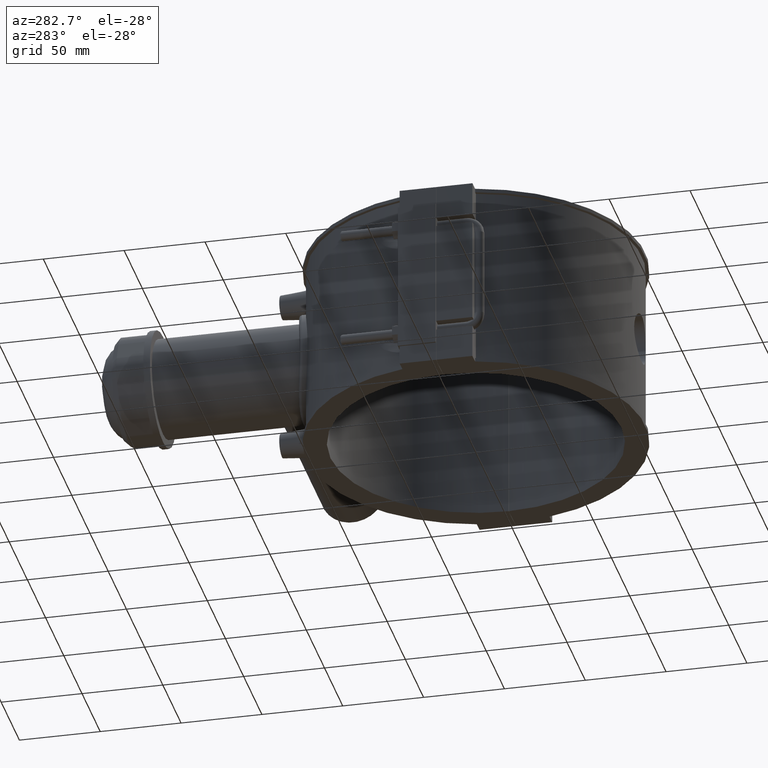
[diagram: clean part render]
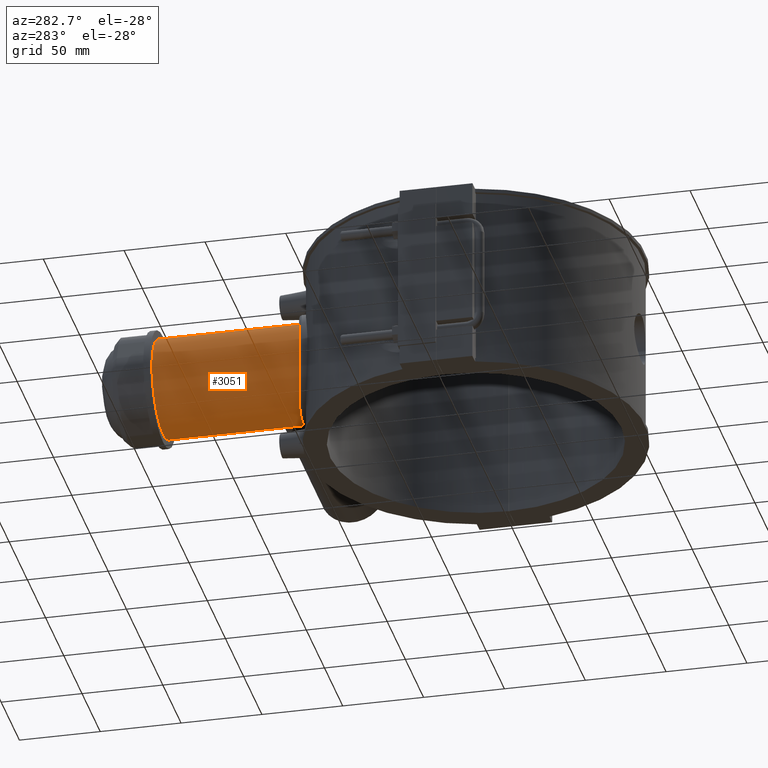
[diagram: same view with one face highlighted and labeled with its STEP entity id]
A machine part, auxiliary view. The second image highlights one B-rep face of the part: STEP entity #3051.
In plain terms, the highlighted cylindrical surface (bore or boss wall) has radius 30.6 mm, axis along (0, 1, 0).
Its self-contained STEP definition (entity closure, byte-faithful):
#738=CIRCLE('',#3264,30.6);
#819=FACE_BOUND('',#1093,.T.);
#904=FACE_OUTER_BOUND('',#1092,.T.);
#1092=EDGE_LOOP('',(#2250,#2251,#2252));
#1093=EDGE_LOOP('',(#2253));
#1285=B_SPLINE_CURVE_WITH_KNOTS('',3,(#4516,#4517,#4518,#4519,#4520,#4521),
 .UNSPECIFIED.,.F.,.F.,(4,2,4),(0.,0.393500533103456,0.713799349997413),
 .UNSPECIFIED.);
#1286=B_SPLINE_CURVE_WITH_KNOTS('',3,(#4522,#4523,#4524,#4525,#4526,#4527,
#4528,#4529,#4530,#4531,#4532,#4533,#4534,#4535,#4536,#4537,#4538,#4539,
#4540,#4541,#4542,#4543,#4544,#4545,#4546,#4547,#4548,#4549,#4550,#4551,
#4552,#4553,#4554,#4555,#4556,#4557,#4558,#4559),.UNSPECIFIED.,.F.,.F.,
(4,2,2,2,2,2,2,2,2,2,2,2,2,2,2,2,2,2,4),(5.55096622759623,5.87126504449018,
6.26476557759364,6.6582661106971,7.05176664380055,7.44526717690401,7.83876771000746,
8.22836287410321,8.61795803819896,9.00755320229471,9.39714836639046,9.78674353048621,
10.176338694582,10.5659338586777,10.9555290227735,11.3490295558769,11.7425300889804,
12.1360306220838,12.5295311551873),.UNSPECIFIED.);
#1287=B_SPLINE_CURVE_WITH_KNOTS('',3,(#4766,#4767,#4768,#4769,#4770,#4771,
#4772,#4773,#4774,#4775,#4776,#4777,#4778,#4779,#4780,#4781,#4782,#4783,
#4784,#4785,#4786,#4787,#4788,#4789,#4790,#4791,#4792,#4793,#4794,#4795,
#4796,#4797,#4798,#4799,#4800,#4801,#4802,#4803,#4804,#4805,#4806,#4807,
#4808,#4809,#4810,#4811,#4812,#4813,#4814,#4815,#4816,#4817,#4818,#4819),
 .UNSPECIFIED.,.F.,.F.,(4,2,2,2,2,2,2,2,2,2,2,2,2,2,2,2,2,2,2,2,2,2,2,2,
2,2,4),(1.93247226610302,2.31972321158568,2.8995108683,3.47929852501433,
4.05908618172865,4.63887383844297,5.21866149515729,5.79844915187161,6.37823680858594,
6.95802446530026,7.53795526819668,8.1178860710931,8.69781687398952,9.27774767688594,
9.85767847978236,10.4376092826788,11.0175400855752,11.5974708884716,12.1772585451859,
12.7570462019003,13.3368338586146,13.9166215153289,14.4964091720432,15.0761968287576,
15.6559844854719,16.2357721421862,16.6230230876689),.UNSPECIFIED.);
#1335=VERTEX_POINT('',#4444);
#1341=VERTEX_POINT('',#4510);
#1342=VERTEX_POINT('',#4515);
#1396=VERTEX_POINT('',#4820);
#1636=EDGE_CURVE('',#1342,#1341,#1285,.T.);
#1637=EDGE_CURVE('',#1335,#1342,#1286,.T.);
#1724=EDGE_CURVE('',#1335,#1341,#1287,.T.);
#1725=EDGE_CURVE('',#1396,#1396,#738,.T.);
#2250=ORIENTED_EDGE('',*,*,#1724,.F.);
#2251=ORIENTED_EDGE('',*,*,#1637,.T.);
#2252=ORIENTED_EDGE('',*,*,#1636,.T.);
#2253=ORIENTED_EDGE('',*,*,#1725,.F.);
#2974=CYLINDRICAL_SURFACE('',#3263,30.6);
#3051=ADVANCED_FACE('',(#904,#819),#2974,.T.);
#3263=AXIS2_PLACEMENT_3D('',#4765,#3670,#3671);
#3264=AXIS2_PLACEMENT_3D('',#4821,#3672,#3673);
#3670=DIRECTION('center_axis',(0.,1.,3.06161699786838E-16));
#3671=DIRECTION('ref_axis',(0.,0.,1.));
#3672=DIRECTION('center_axis',(0.,1.,3.06161699786838E-16));
#3673=DIRECTION('ref_axis',(1.,0.,0.));
#4444=CARTESIAN_POINT('',(24.2176461043326,103.919436262809,18.7046950567108));
#4510=CARTESIAN_POINT('',(24.2176461043326,103.919436262809,-18.7046950567108));
#4515=CARTESIAN_POINT('',(23.1594473163761,111.,-20.));
#4516=CARTESIAN_POINT('Ctrl Pts',(23.1594473163761,111.,-20.));
#4517=CARTESIAN_POINT('Ctrl Pts',(23.1594473163761,109.688331556322,-20.));
#4518=CARTESIAN_POINT('Ctrl Pts',(23.2743259550548,108.354480801617,-19.8691713621282));
#4519=CARTESIAN_POINT('Ctrl Pts',(23.6739239747007,105.980287719745,-19.3902978118822));
#4520=CARTESIAN_POINT('Ctrl Pts',(23.9218594248282,104.931115190283,-19.0876607829779));
#4521=CARTESIAN_POINT('Ctrl Pts',(24.2176461043484,103.919436262877,-18.7046950567108));
#4522=CARTESIAN_POINT('Ctrl Pts',(24.2176461043484,103.919436262877,18.7046950567108));
#4523=CARTESIAN_POINT('Ctrl Pts',(23.9218594248282,104.931115190283,19.0876607829779));
#4524=CARTESIAN_POINT('Ctrl Pts',(23.6739239747007,105.980287719745,19.3902978118822));
#4525=CARTESIAN_POINT('Ctrl Pts',(23.2743259550548,108.354480801616,19.8691713621282));
#4526=CARTESIAN_POINT('Ctrl Pts',(23.1594473163761,109.688331556322,20.));
#4527=CARTESIAN_POINT('Ctrl Pts',(23.1594473163761,112.311668443678,20.));
#4528=CARTESIAN_POINT('Ctrl Pts',(23.2743259550548,113.645519198383,19.8691713621282));
#4529=CARTESIAN_POINT('Ctrl Pts',(23.7149036433318,116.263191078892,19.341188260682));
#4530=CARTESIAN_POINT('Ctrl Pts',(24.0392889571048,117.547295747394,18.9443442137066));
#4531=CARTESIAN_POINT('Ctrl Pts',(24.8157759065117,119.989028233019,17.9151543881181));
#4532=CARTESIAN_POINT('Ctrl Pts',(25.2673468184926,121.149250789195,17.2819440746868));
#4533=CARTESIAN_POINT('Ctrl Pts',(26.200984047049,123.290648544021,15.8307561763519));
#4534=CARTESIAN_POINT('Ctrl Pts',(26.6824016365569,124.271858555426,15.0124126920357));
#4535=CARTESIAN_POINT('Ctrl Pts',(27.5850050176066,126.003775465896,13.2804957815664));
#4536=CARTESIAN_POINT('Ctrl Pts',(28.0410430223188,126.820558023233,12.3038928737231));
#4537=CARTESIAN_POINT('Ctrl Pts',(28.8864156904468,128.274691718892,10.1617351946478));
#4538=CARTESIAN_POINT('Ctrl Pts',(29.2752579303965,128.912134657191,8.99604844208787));
#4539=CARTESIAN_POINT('Ctrl Pts',(29.919471976457,129.946731965989,6.54177480490095));
#4540=CARTESIAN_POINT('Ctrl Pts',(30.1751270315782,130.344732971532,5.25059734327164));
#4541=CARTESIAN_POINT('Ctrl Pts',(30.5154888274388,130.871473542444,2.62906931549225));
#4542=CARTESIAN_POINT('Ctrl Pts',(30.6,131.,1.29865054698583));
#4543=CARTESIAN_POINT('Ctrl Pts',(30.6,131.,-1.29865054698582));
#4544=CARTESIAN_POINT('Ctrl Pts',(30.5154888274388,130.871473542444,-2.62906931549224));
#4545=CARTESIAN_POINT('Ctrl Pts',(30.1751270315782,130.344732971532,-5.25059734327163));
#4546=CARTESIAN_POINT('Ctrl Pts',(29.919471976457,129.946731965989,-6.54177480490094));
#4547=CARTESIAN_POINT('Ctrl Pts',(29.2752579303965,128.912134657191,-8.99604844208786));
#4548=CARTESIAN_POINT('Ctrl Pts',(28.8864156904468,128.274691718892,-10.1617351946478));
#4549=CARTESIAN_POINT('Ctrl Pts',(28.0410430223188,126.820558023233,-12.3038928737231));
#4550=CARTESIAN_POINT('Ctrl Pts',(27.5850050176066,126.003775465896,-13.2804957815664));
#4551=CARTESIAN_POINT('Ctrl Pts',(26.6824016365568,124.271858555426,-15.0124126920356));
#4552=CARTESIAN_POINT('Ctrl Pts',(26.200984047049,123.290648544021,-15.8307561763519));
#4553=CARTESIAN_POINT('Ctrl Pts',(25.2673468184926,121.149250789195,-17.2819440746868));
#4554=CARTESIAN_POINT('Ctrl Pts',(24.8157759065117,119.989028233019,-17.9151543881181));
#4555=CARTESIAN_POINT('Ctrl Pts',(24.0392889571048,117.547295747394,-18.9443442137066));
#4556=CARTESIAN_POINT('Ctrl Pts',(23.7149036433318,116.263191078892,-19.341188260682));
#4557=CARTESIAN_POINT('Ctrl Pts',(23.2743259550548,113.645519198384,-19.8691713621283));
#4558=CARTESIAN_POINT('Ctrl Pts',(23.1594473163761,112.311668443678,-20.));
#4559=CARTESIAN_POINT('Ctrl Pts',(23.1594473163761,111.,-20.));
#4765=CARTESIAN_POINT('Origin',(0.,142.2,1.5981640728873E-14));
#4766=CARTESIAN_POINT('Ctrl Pts',(24.2176461043362,103.919436262737,18.7046950567265));
#4767=CARTESIAN_POINT('Ctrl Pts',(23.4077841241217,104.108168530112,19.7532526926949));
#4768=CARTESIAN_POINT('Ctrl Pts',(22.5405958310645,104.300123555233,20.7343391775522));
#4769=CARTESIAN_POINT('Ctrl Pts',(20.2853141722367,104.767153095376,22.98962083638));
#4770=CARTESIAN_POINT('Ctrl Pts',(18.7572095971888,105.055973531958,24.2602289160296));
#4771=CARTESIAN_POINT('Ctrl Pts',(15.4262471790319,105.596502709904,26.5032548378288));
#4772=CARTESIAN_POINT('Ctrl Pts',(13.6234156684582,105.847703593396,27.475834137547));
#4773=CARTESIAN_POINT('Ctrl Pts',(9.85686130471451,106.264651202978,29.0406819729061));
#4774=CARTESIAN_POINT('Ctrl Pts',(7.88993884661287,106.430395565395,29.6341934079132));
#4775=CARTESIAN_POINT('Ctrl Pts',(3.92784477748027,106.650139571473,30.41395385921));
#4776=CARTESIAN_POINT('Ctrl Pts',(1.93262552238107,106.704,30.6));
#4777=CARTESIAN_POINT('Ctrl Pts',(-1.93262552238107,106.704,30.6));
#4778=CARTESIAN_POINT('Ctrl Pts',(-3.92784477748027,106.650139571473,30.41395385921));
#4779=CARTESIAN_POINT('Ctrl Pts',(-7.88993884661287,106.430395565395,29.6341934079132));
#4780=CARTESIAN_POINT('Ctrl Pts',(-9.85686130471451,106.264651202978,29.0406819729061));
#4781=CARTESIAN_POINT('Ctrl Pts',(-13.6234156684582,105.847703593396,27.475834137547));
#4782=CARTESIAN_POINT('Ctrl Pts',(-15.4262471790319,105.596502709904,26.5032548378288));
#4783=CARTESIAN_POINT('Ctrl Pts',(-18.7572095971888,105.055973531958,24.2602289160296));
#4784=CARTESIAN_POINT('Ctrl Pts',(-20.2853141722367,104.767153095376,22.98962083638));
#4785=CARTESIAN_POINT('Ctrl Pts',(-22.9899546751309,104.207069167333,20.2849803334858));
#4786=CARTESIAN_POINT('Ctrl Pts',(-24.2606015899069,103.915830756304,18.7567190480679));
#4787=CARTESIAN_POINT('Ctrl Pts',(-26.5034801784178,103.366542990763,15.4258496415267));
#4788=CARTESIAN_POINT('Ctrl Pts',(-27.4758884435353,103.109055599237,13.6232677839844));
#4789=CARTESIAN_POINT('Ctrl Pts',(-29.0405456802427,102.679348199261,9.85720652836413));
#4790=CARTESIAN_POINT('Ctrl Pts',(-29.634036869428,102.507231846384,7.89051991546594));
#4791=CARTESIAN_POINT('Ctrl Pts',(-30.41386816503,102.278567380449,3.92849446699046));
#4792=CARTESIAN_POINT('Ctrl Pts',(-30.6,102.222226624155,1.93310267632141));
#4793=CARTESIAN_POINT('Ctrl Pts',(-30.6,102.222226624155,-1.93310267632139));
#4794=CARTESIAN_POINT('Ctrl Pts',(-30.41386816503,102.278567380449,-3.92849446699044));
#4795=CARTESIAN_POINT('Ctrl Pts',(-29.634036869428,102.507231846384,-7.89051991546592));
#4796=CARTESIAN_POINT('Ctrl Pts',(-29.0405456802427,102.679348199261,-9.85720652836411));
#4797=CARTESIAN_POINT('Ctrl Pts',(-27.4758884435353,103.109055599237,-13.6232677839844));
#4798=CARTESIAN_POINT('Ctrl Pts',(-26.5034801784178,103.366542990763,-15.4258496415267));
#4799=CARTESIAN_POINT('Ctrl Pts',(-24.2606015899069,103.915830756304,-18.7567190480678));
#4800=CARTESIAN_POINT('Ctrl Pts',(-22.9899546751309,104.207069167333,-20.2849803334858));
#4801=CARTESIAN_POINT('Ctrl Pts',(-20.2853141722367,104.767153095376,-22.98962083638));
#4802=CARTESIAN_POINT('Ctrl Pts',(-18.7572095971888,105.055973531958,-24.2602289160296));
#4803=CARTESIAN_POINT('Ctrl Pts',(-15.4262471790319,105.596502709904,-26.5032548378288));
#4804=CARTESIAN_POINT('Ctrl Pts',(-13.6234156684582,105.847703593396,-27.475834137547));
#4805=CARTESIAN_POINT('Ctrl Pts',(-9.85686130471452,106.264651202978,-29.0406819729061));
#4806=CARTESIAN_POINT('Ctrl Pts',(-7.88993884661287,106.430395565395,-29.6341934079132));
#4807=CARTESIAN_POINT('Ctrl Pts',(-3.92784477748027,106.650139571473,-30.41395385921));
#4808=CARTESIAN_POINT('Ctrl Pts',(-1.93262552238108,106.704,-30.6));
#4809=CARTESIAN_POINT('Ctrl Pts',(1.93262552238107,106.704,-30.6));
#4810=CARTESIAN_POINT('Ctrl Pts',(3.92784477748027,106.650139571473,-30.41395385921));
#4811=CARTESIAN_POINT('Ctrl Pts',(7.88993884661287,106.430395565395,-29.6341934079132));
#4812=CARTESIAN_POINT('Ctrl Pts',(9.85686130471451,106.264651202978,-29.0406819729061));
#4813=CARTESIAN_POINT('Ctrl Pts',(13.6234156684582,105.847703593396,-27.475834137547));
#4814=CARTESIAN_POINT('Ctrl Pts',(15.4262471790319,105.596502709904,-26.5032548378288));
#4815=CARTESIAN_POINT('Ctrl Pts',(18.7572095971888,105.055973531958,-24.2602289160296));
#4816=CARTESIAN_POINT('Ctrl Pts',(20.2853141722367,104.767153095376,-22.98962083638));
#4817=CARTESIAN_POINT('Ctrl Pts',(22.5405958310645,104.300123555233,-20.7343391775522));
#4818=CARTESIAN_POINT('Ctrl Pts',(23.4077841241217,104.108168530112,-19.7532526926949));
#4819=CARTESIAN_POINT('Ctrl Pts',(24.2176461043362,103.919436262737,-18.7046950567265));
#4820=CARTESIAN_POINT('',(0.,193.5,30.6000000000001));
#4821=CARTESIAN_POINT('Origin',(0.,193.5,3.16877359279378E-14));